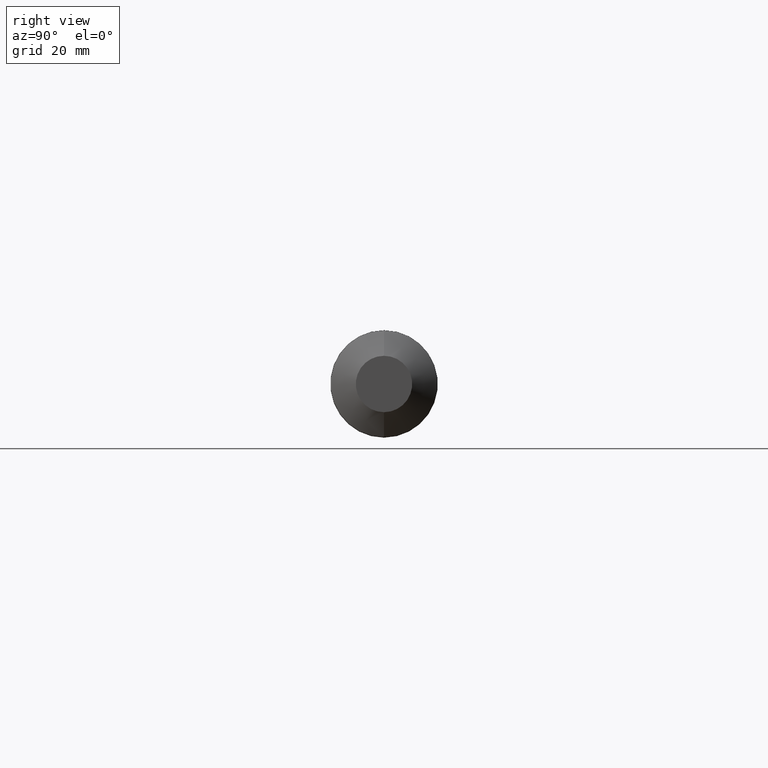
[diagram: clean part render]
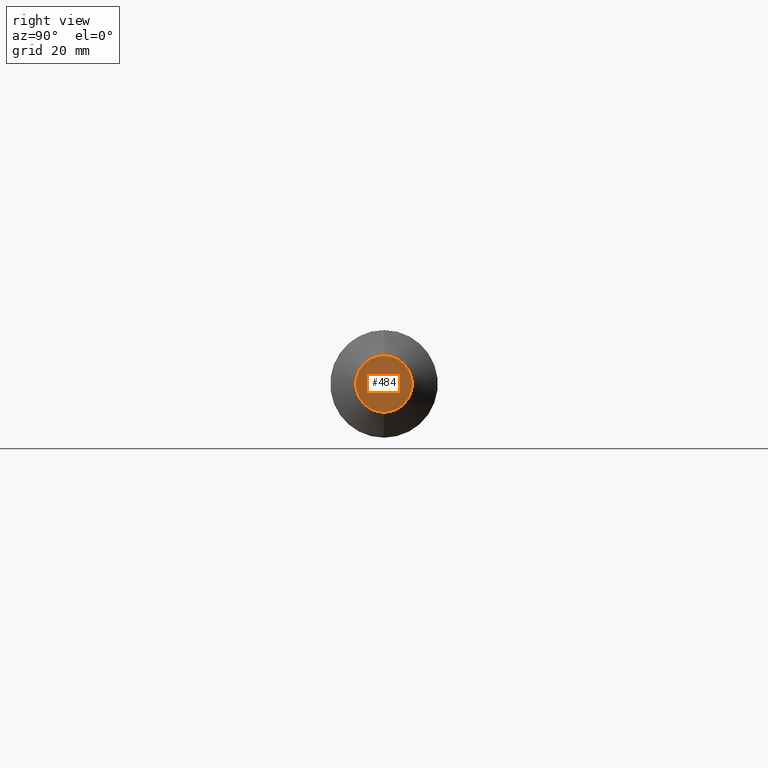
[diagram: same view with one face highlighted and labeled with its STEP entity id]
A machine part, right view. The second image highlights one B-rep face of the part: STEP entity #484.
In plain terms, the highlighted planar face has unit normal (-1, 0, -0).
Its self-contained STEP definition (entity closure, byte-faithful):
#32 = CIRCLE ( 'NONE', #247, 0.1969999999999990925 ) ;
#36 = EDGE_CURVE ( 'NONE', #217, #486, #32, .T. ) ;
#44 = DIRECTION ( 'NONE',  ( -1.000000000000000000, 0.0000000000000000000, -0.0000000000000000000 ) ) ;
#57 = DIRECTION ( 'NONE',  ( 0.0000000000000000000, 0.0000000000000000000, 1.000000000000000000 ) ) ;
#95 = DIRECTION ( 'NONE',  ( -0.0000000000000000000, 0.0000000000000000000, 1.000000000000000000 ) ) ;
#96 = CARTESIAN_POINT ( 'NONE',  ( 5.000000000000000000, 3.487181760572077146E-17, -0.1969999999999990925 ) ) ;
#157 = ORIENTED_EDGE ( 'NONE', *, *, #36, .F. ) ;
#162 = FACE_OUTER_BOUND ( 'NONE', #243, .T. ) ;
#182 = PLANE ( 'NONE',  #483 ) ;
#217 = VERTEX_POINT ( 'NONE', #326 ) ;
#232 = CARTESIAN_POINT ( 'NONE',  ( 5.000000000000000000, 0.1969999999999990925, 0.0000000000000000000 ) ) ;
#243 = EDGE_LOOP ( 'NONE', ( #157, #345 ) ) ;
#245 = CIRCLE ( 'NONE', #475, 0.1969999999999990925 ) ;
#247 = AXIS2_PLACEMENT_3D ( 'NONE', #494, #296, #57 ) ;
#296 = DIRECTION ( 'NONE',  ( -1.000000000000000000, -0.0000000000000000000, -0.0000000000000000000 ) ) ;
#303 = DIRECTION ( 'NONE',  ( -1.000000000000000000, -0.0000000000000000000, -0.0000000000000000000 ) ) ;
#326 = CARTESIAN_POINT ( 'NONE',  ( 5.000000000000000000, 0.0000000000000000000, 0.1969999999999990925 ) ) ;
#330 = CARTESIAN_POINT ( 'NONE',  ( 5.000000000000000000, 0.0000000000000000000, 0.0000000000000000000 ) ) ;
#345 = ORIENTED_EDGE ( 'NONE', *, *, #404, .F. ) ;
#365 = DIRECTION ( 'NONE',  ( 0.0000000000000000000, 0.0000000000000000000, 1.000000000000000000 ) ) ;
#404 = EDGE_CURVE ( 'NONE', #486, #217, #245, .T. ) ;
#475 = AXIS2_PLACEMENT_3D ( 'NONE', #330, #303, #365 ) ;
#483 = AXIS2_PLACEMENT_3D ( 'NONE', #232, #44, #95 ) ;
#484 = ADVANCED_FACE ( 'NONE', ( #162 ), #182, .F. ) ;
#486 = VERTEX_POINT ( 'NONE', #96 ) ;
#494 = CARTESIAN_POINT ( 'NONE',  ( 5.000000000000000000, 0.0000000000000000000, 0.0000000000000000000 ) ) ;